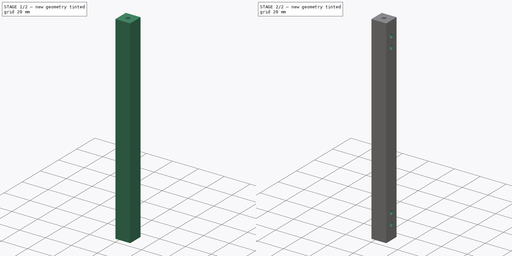
[diagram: build sequence overview — one tinted view per stage of 2, left to right]
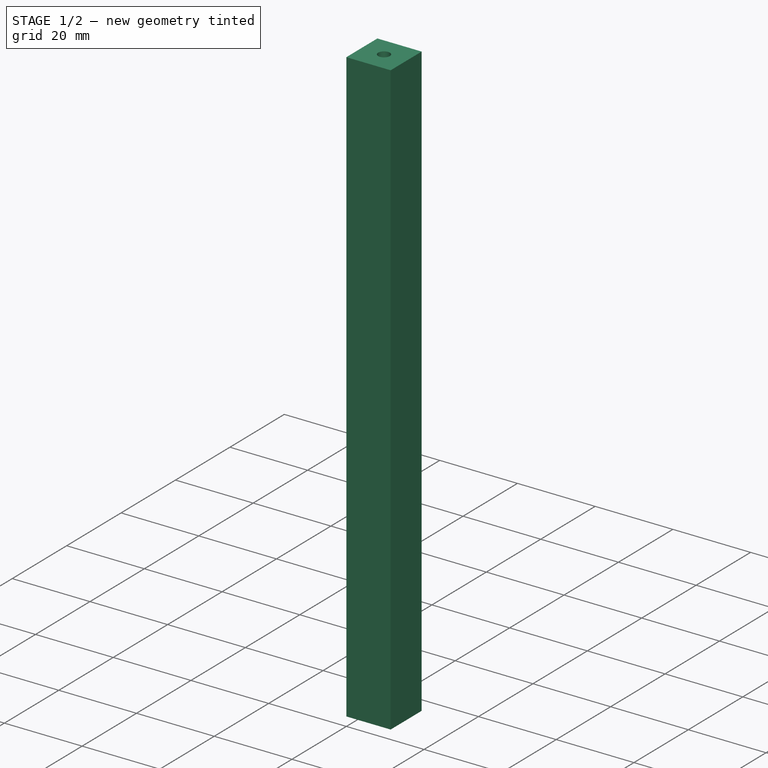
[diagram: stage 1 of 2 — iso view after this stage's code; geometry added in this stage tinted green]
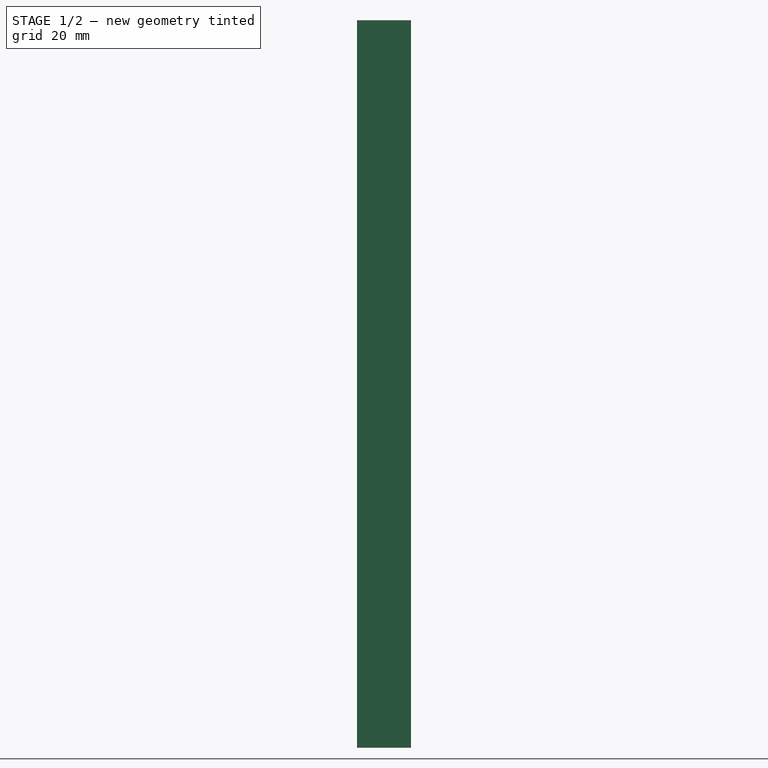
[diagram: stage 1 of 2 — front view after this stage's code; geometry added in this stage tinted green]
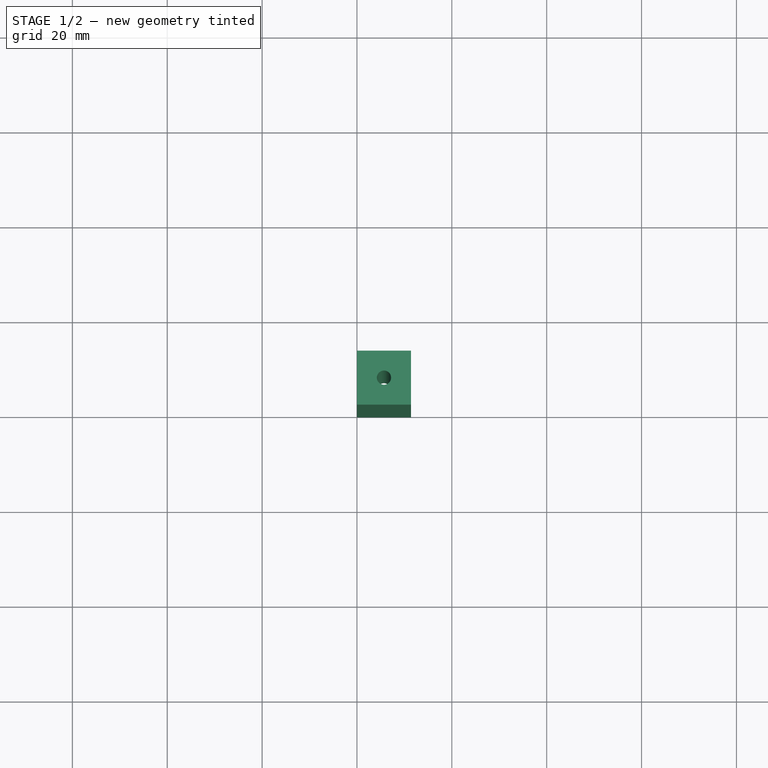
[diagram: stage 1 of 2 — top view after this stage's code; geometry added in this stage tinted green]
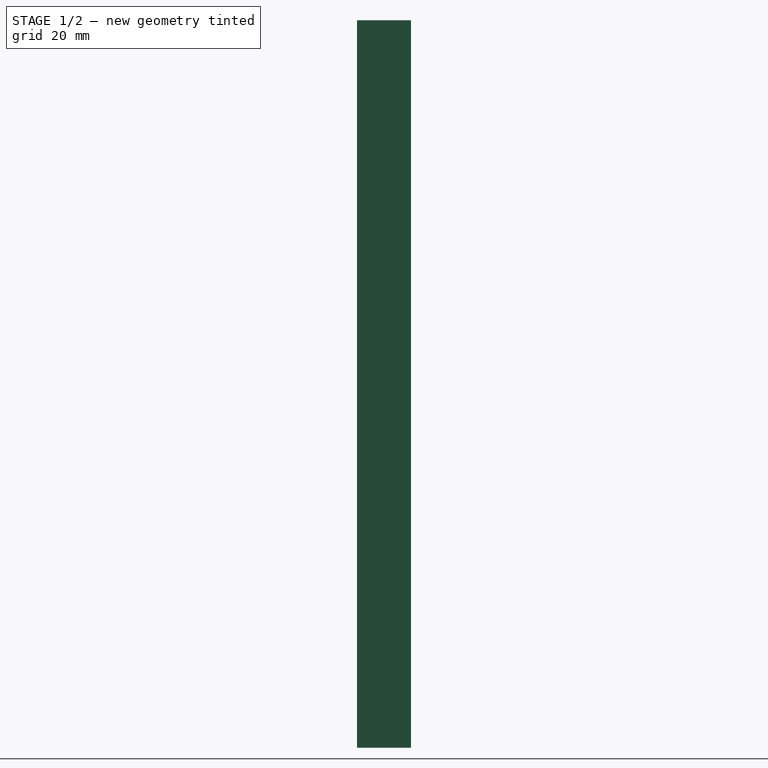
[diagram: stage 1 of 2 — right view after this stage's code; geometry added in this stage tinted green]
FCSTD DOCUMENT  (FreeCAD 0.16R6707 (Git))
Label: profile_grand
License: All rights reserved
LicenseURL: http://en.wikipedia.org/wiki/All_rights_reserved
objects: Sketcher::SketchObject×2, PartDesign::Pad×1, PartDesign::Pocket×1
note: 6 computed .brp shape members not serialized (recipe doc carries the construction recipe); baked Part::Feature solids carry a one-line shape summary decoded from their .brp

FEATURE [Sketcher::SketchObject] Sketch
  sketch-geometry (5):
    g0: LineSegment StartX=0 StartY=0 StartZ=0 EndX=11.4 EndY=0 EndZ=0
    g1: LineSegment StartX=11.4 StartY=0 StartZ=0 EndX=11.4 EndY=11.4 EndZ=0
    g2: LineSegment StartX=11.4 StartY=11.4 StartZ=0 EndX=0 EndY=11.4 EndZ=0
    g3: LineSegment StartX=0 StartY=11.4 StartZ=0 EndX=0 EndY=0 EndZ=0
    g4: Circle CenterX=5.7 CenterY=5.7 CenterZ=0 NormalX=0 NormalY=0 NormalZ=1 Radius=1.5
  constraints (14):
    c: Coincident(g0,g1)
    c: Coincident(g1,g2)
    c: Coincident(g2,g3)
    c: Coincident(g3,g0)
    c: Horizontal(g0)
    c: Horizontal(g2)
    c: Vertical(g1)
    c: Vertical(g3)
    c: Coincident(g0,g-1)
    c: Distance(g3) = 11.4
    c: Distance(g2) = 11.4
    c: DistanceY(g4) = 5.7
    c: DistanceX(g4) = 5.7
    c: Radius(g4) = 1.5
FEATURE [PartDesign::Pad] Pad
  Length = 153.35
  Length2 = 100
  Sketch = -> Sketch
  Type = 0
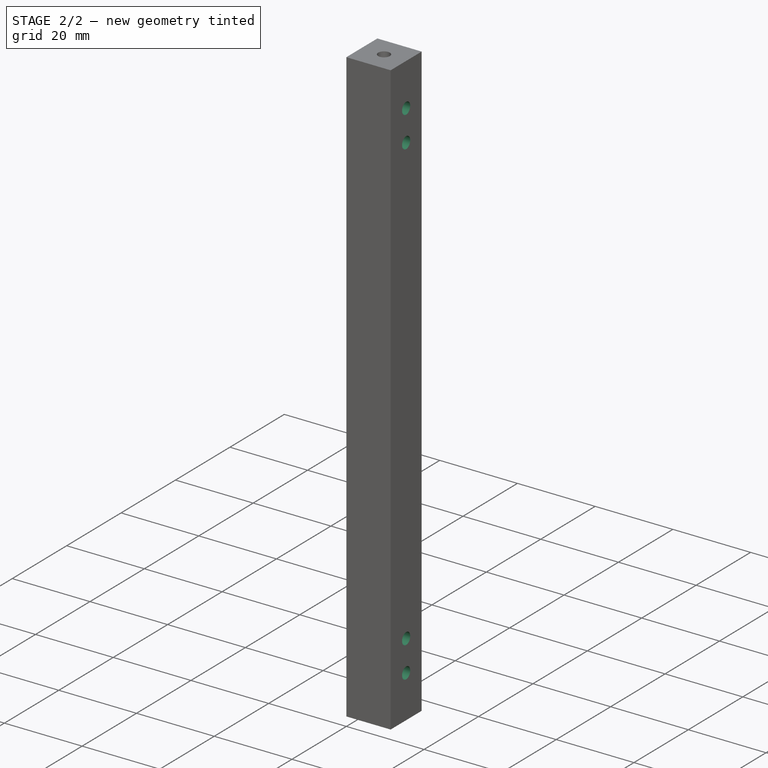
[diagram: stage 2 of 2 — iso view after this stage's code; geometry added in this stage tinted green]
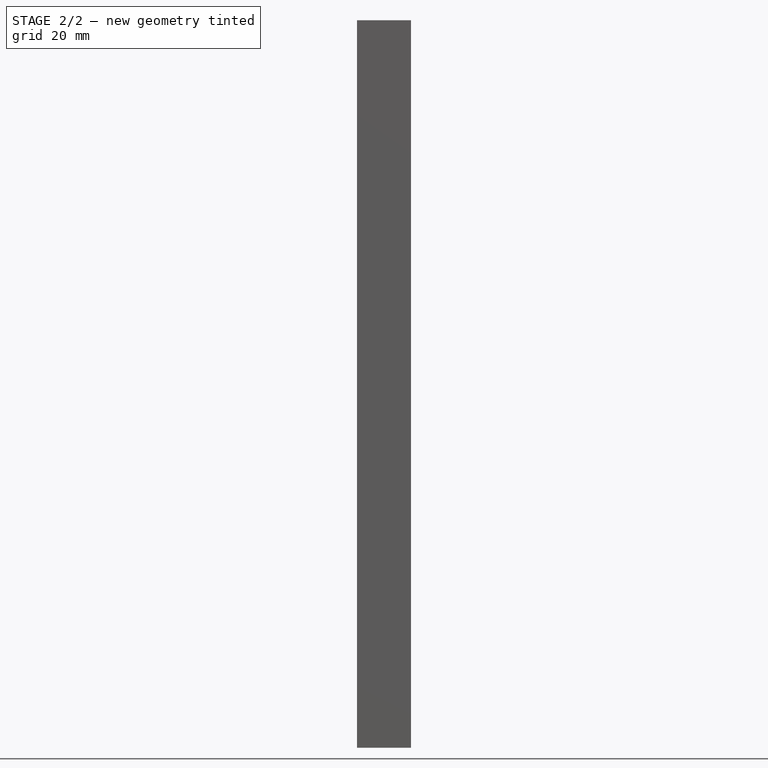
[diagram: stage 2 of 2 — front view after this stage's code; geometry added in this stage tinted green]
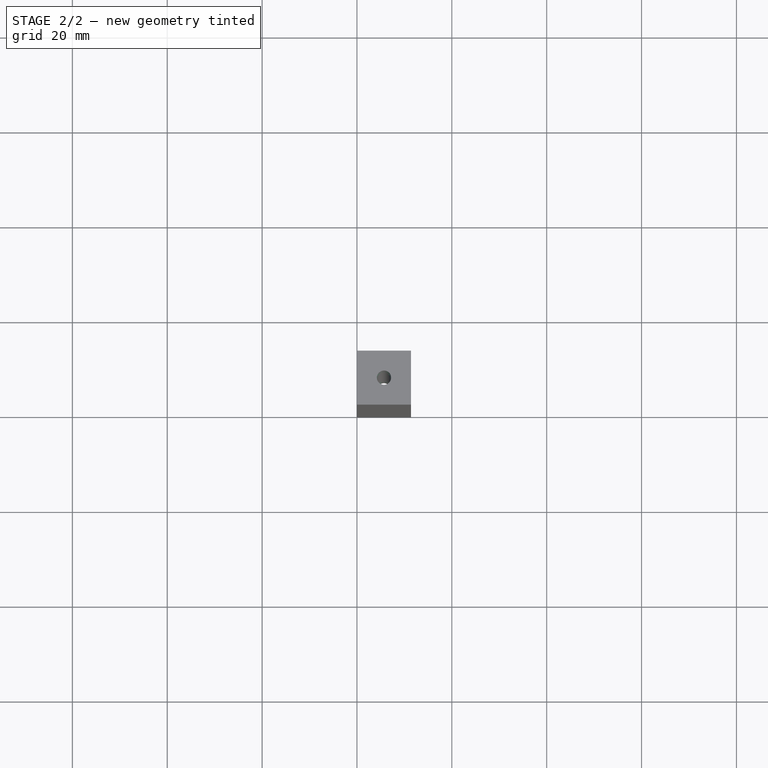
[diagram: stage 2 of 2 — top view after this stage's code; geometry added in this stage tinted green]
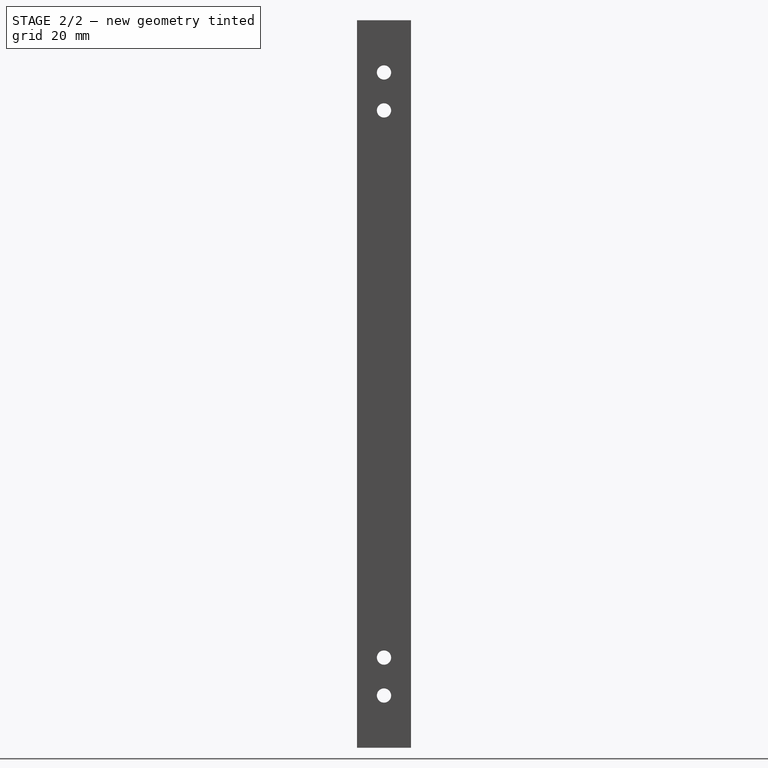
[diagram: stage 2 of 2 — right view after this stage's code; geometry added in this stage tinted green]
FEATURE [Sketcher::SketchObject] Sketch001
  Placement = pos=(11.4,0,0) rot=(0.57735,0.57735,0.57735;2.0944rad)
  Support = -> Pad [Face2]
  sketch-geometry (9):
    g0: GeomPoint [constr] X=5.7 Y=153.35 Z=0
    g1: GeomPoint [constr] X=5.7 Y=142.35 Z=0
    g2: GeomPoint [constr] X=5.7 Y=134.35 Z=0
    g3: GeomPoint [constr] X=5.7 Y=19 Z=0
    g4: GeomPoint [constr] X=5.7 Y=11 Z=0
    g5: Circle CenterX=5.7 CenterY=142.35 CenterZ=0 NormalX=0 NormalY=0 NormalZ=1 Radius=1.5
    g6: Circle CenterX=5.7 CenterY=134.35 CenterZ=0 NormalX=0 NormalY=0 NormalZ=1 Radius=1.5
    g7: Circle CenterX=5.7 CenterY=19 CenterZ=0 NormalX=0 NormalY=0 NormalZ=1 Radius=1.5
    g8: Circle CenterX=5.7 CenterY=11 CenterZ=0 NormalX=0 NormalY=0 NormalZ=1 Radius=1.5
  constraints (18):
    c: DistanceY(g4) = 11
    c: DistanceY(g0) = 153.35
    c: DistanceY(g1,g0) = 11
    c: DistanceY(g2,g1) = 8
    c: DistanceY(g4,g3) = 8
    c: DistanceX(g0) = 5.7
    c: DistanceX(g4) = 5.7
    c: DistanceX(g3,g4) = 0
    c: DistanceX(g1,g0) = 0
    c: DistanceX(g2,g1) = 0
    c: Coincident(g5,g1)
    c: Coincident(g6,g2)
    c: Coincident(g7,g3)
    c: Coincident(g8,g4)
    c: Radius(g5) = 1.5
    c: Equal(g5,g6)
    c: Equal(g5,g7)
    c: Equal(g5,g8)
FEATURE [PartDesign::Pocket] Pocket
  Length = 5
  Sketch = -> Sketch001
  Type = 1
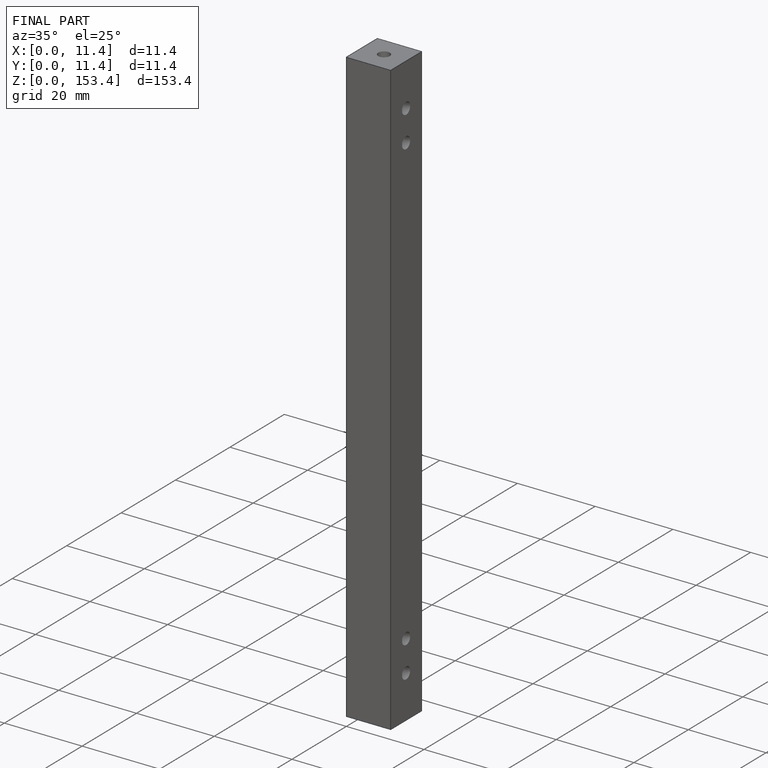
[diagram: finished part — iso view with bounding-box wireframe]
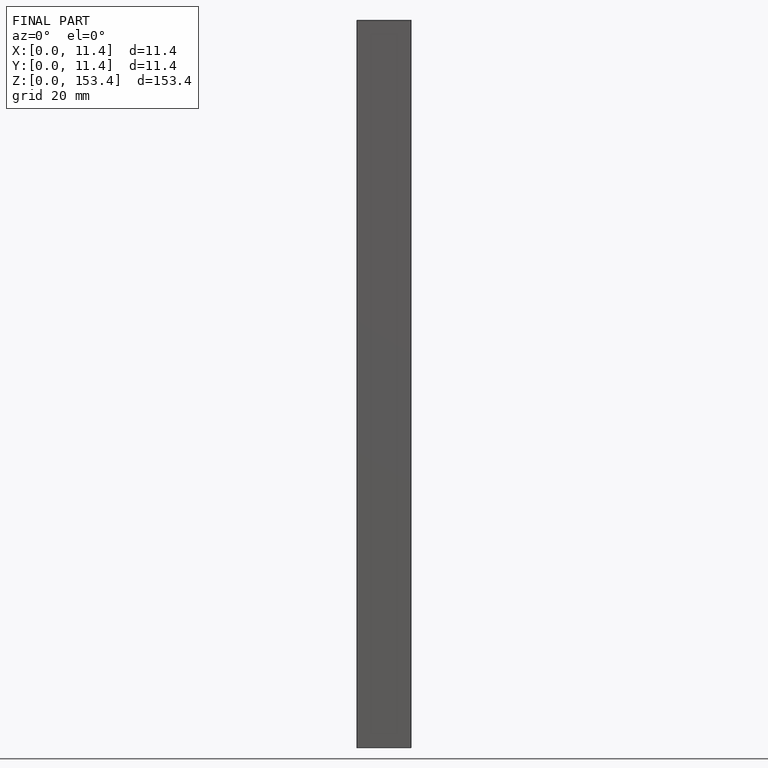
[diagram: finished part — front view with bounding-box wireframe]
